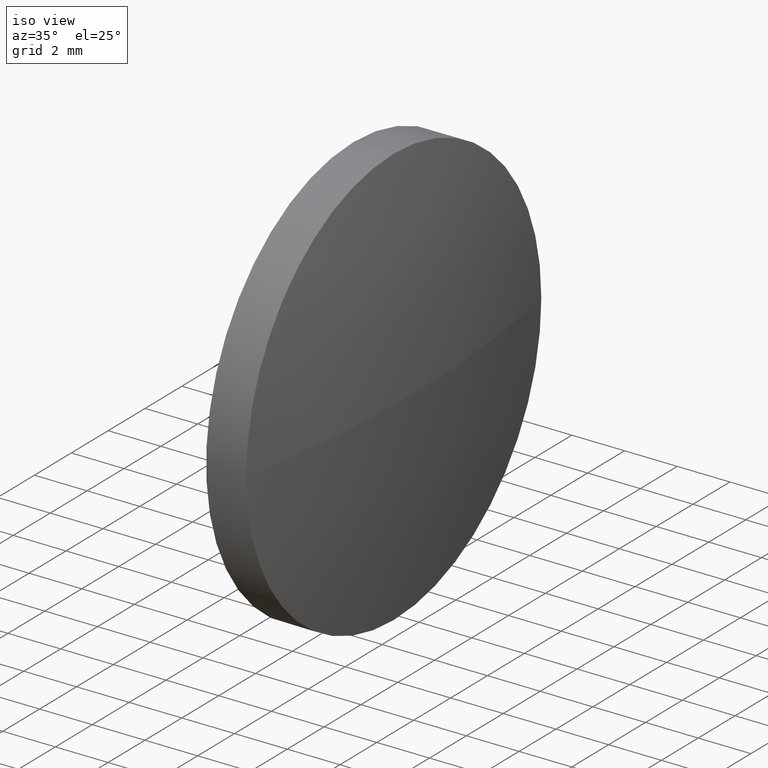
[diagram: clean part render]
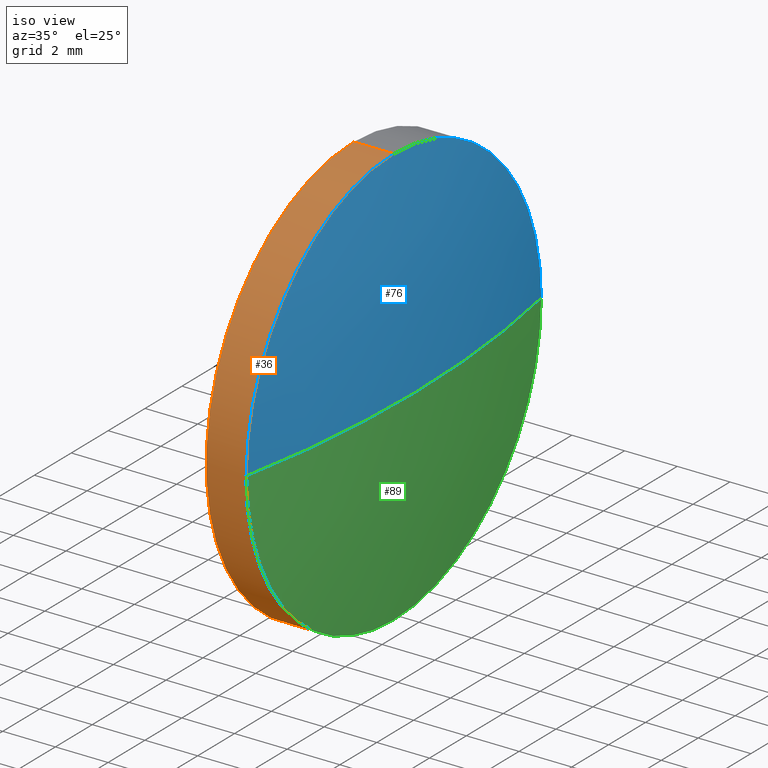
[diagram: same view with three faces highlighted in distinct colors, each labeled with its STEP entity id]
A machine part, iso view with three faces highlighted in distinct colors.
Their STEP definitions:

[orange] entity #36 — the highlighted cylindrical surface (partial cylindrical patch) has radius 8 mm, axis along (-1, -0, -0).
#8 = DIRECTION ( 'NONE',  ( -1.000000000000000000, -0.0000000000000000000, -0.0000000000000000000 ) ) ;
#12 = ORIENTED_EDGE ( 'NONE', *, *, #165, .F. ) ;
#13 = LINE ( 'NONE', #105, #18 ) ;
#17 = ORIENTED_EDGE ( 'NONE', *, *, #176, .F. ) ;
#18 = VECTOR ( 'NONE', #24, 1000.000000000000000 ) ;
#20 = FACE_OUTER_BOUND ( 'NONE', #185, .T. ) ;
#21 = DIRECTION ( 'NONE',  ( 0.0000000000000000000, 0.0000000000000000000, 1.000000000000000000 ) ) ;
#22 = VERTEX_POINT ( 'NONE', #34 ) ;
#24 = DIRECTION ( 'NONE',  ( -1.000000000000000000, -0.0000000000000000000, -0.0000000000000000000 ) ) ;
#28 = VERTEX_POINT ( 'NONE', #123 ) ;
#30 = AXIS2_PLACEMENT_3D ( 'NONE', #90, #103, #147 ) ;
#34 = CARTESIAN_POINT ( 'NONE',  ( 409.6874928420184600, 111.0797885215637400, -7.999999999999992900 ) ) ;
#36 = ADVANCED_FACE ( 'NONE', ( #20 ), #71, .T. ) ;
#52 = AXIS2_PLACEMENT_3D ( 'NONE', #102, #61, #101 ) ;
#53 = VERTEX_POINT ( 'NONE', #63 ) ;
#54 = CIRCLE ( 'NONE', #30, 7.999999999999992900 ) ;
#57 = EDGE_CURVE ( 'NONE', #22, #28, #83, .T. ) ;
#61 = DIRECTION ( 'NONE',  ( -1.000000000000000000, -0.0000000000000000000, -0.0000000000000000000 ) ) ;
#63 = CARTESIAN_POINT ( 'NONE',  ( 408.1674928420184800, 111.0797885215637400, -7.999999999999992900 ) ) ;
#71 = CYLINDRICAL_SURFACE ( 'NONE', #52, 7.999999999999992900 ) ;
#80 = VERTEX_POINT ( 'NONE', #128 ) ;
#82 = VECTOR ( 'NONE', #8, 1000.000000000000000 ) ;
#83 = CIRCLE ( 'NONE', #160, 7.999999999999992900 ) ;
#85 = CARTESIAN_POINT ( 'NONE',  ( 409.6874928420184600, 111.0797885215637400, 0.0000000000000000000 ) ) ;
#90 = CARTESIAN_POINT ( 'NONE',  ( 408.1674928420184800, 111.0797885215637400, 0.0000000000000000000 ) ) ;
#92 = EDGE_CURVE ( 'NONE', #28, #80, #186, .T. ) ;
#97 = ORIENTED_EDGE ( 'NONE', *, *, #153, .T. ) ;
#99 = DIRECTION ( 'NONE',  ( -1.000000000000000000, -0.0000000000000000000, -0.0000000000000000000 ) ) ;
#101 = DIRECTION ( 'NONE',  ( 0.0000000000000000000, 0.0000000000000000000, 1.000000000000000000 ) ) ;
#102 = CARTESIAN_POINT ( 'NONE',  ( 404.4422242216561500, 111.0797885215637400, 0.0000000000000000000 ) ) ;
#103 = DIRECTION ( 'NONE',  ( -1.000000000000000000, -0.0000000000000000000, -0.0000000000000000000 ) ) ;
#104 = AXIS2_PLACEMENT_3D ( 'NONE', #162, #168, #183 ) ;
#105 = CARTESIAN_POINT ( 'NONE',  ( 404.4422242216561500, 111.0797885215637400, -7.999999999999992900 ) ) ;
#113 = CARTESIAN_POINT ( 'NONE',  ( 404.4422242216561500, 111.0797885215637400, 7.999999999999992900 ) ) ;
#123 = CARTESIAN_POINT ( 'NONE',  ( 409.6874928420184600, 103.0797885215635400, -9.797174393178863100E-016 ) ) ;
#128 = CARTESIAN_POINT ( 'NONE',  ( 409.6874928420184600, 111.0797885215637400, 7.999999999999992900 ) ) ;
#132 = LINE ( 'NONE', #113, #82 ) ;
#142 = ORIENTED_EDGE ( 'NONE', *, *, #92, .T. ) ;
#147 = DIRECTION ( 'NONE',  ( 0.0000000000000000000, 0.0000000000000000000, 1.000000000000000000 ) ) ;
#153 = EDGE_CURVE ( 'NONE', #80, #173, #132, .T. ) ;
#160 = AXIS2_PLACEMENT_3D ( 'NONE', #85, #99, #21 ) ;
#161 = ORIENTED_EDGE ( 'NONE', *, *, #57, .T. ) ;
#162 = CARTESIAN_POINT ( 'NONE',  ( 409.6874928420184600, 111.0797885215637400, 0.0000000000000000000 ) ) ;
#165 = EDGE_CURVE ( 'NONE', #22, #53, #13, .T. ) ;
#168 = DIRECTION ( 'NONE',  ( -1.000000000000000000, -0.0000000000000000000, -0.0000000000000000000 ) ) ;
#171 = CARTESIAN_POINT ( 'NONE',  ( 408.1674928420184800, 111.0797885215637400, 7.999999999999992900 ) ) ;
#173 = VERTEX_POINT ( 'NONE', #171 ) ;
#176 = EDGE_CURVE ( 'NONE', #53, #173, #54, .T. ) ;
#183 = DIRECTION ( 'NONE',  ( 0.0000000000000000000, 0.0000000000000000000, 1.000000000000000000 ) ) ;
#185 = EDGE_LOOP ( 'NONE', ( #12, #161, #142, #97, #17 ) ) ;
#186 = CIRCLE ( 'NONE', #104, 7.999999999999992900 ) ;

[blue] entity #76 — the highlighted spherical surface has radius 41.4156 mm.
#2 = CIRCLE ( 'NONE', #136, 41.41564102564093700 ) ;
#4 = VERTEX_POINT ( 'NONE', #109 ) ;
#9 = AXIS2_PLACEMENT_3D ( 'NONE', #35, #10, #77 ) ;
#10 = DIRECTION ( 'NONE',  ( -0.0000000000000000000, 0.0000000000000000000, 1.000000000000000000 ) ) ;
#27 = EDGE_CURVE ( 'NONE', #80, #95, #124, .T. ) ;
#28 = VERTEX_POINT ( 'NONE', #123 ) ;
#32 = CIRCLE ( 'NONE', #9, 41.41564102564093700 ) ;
#35 = CARTESIAN_POINT ( 'NONE',  ( 369.0518518163775600, 111.0797885215635900, 0.0000000000000000000 ) ) ;
#41 = ORIENTED_EDGE ( 'NONE', *, *, #137, .F. ) ;
#42 = DIRECTION ( 'NONE',  ( -0.0000000000000000000, 0.0000000000000000000, -1.000000000000000000 ) ) ;
#45 = CARTESIAN_POINT ( 'NONE',  ( 409.6874928420184600, 119.0797885215637600, 0.0000000000000000000 ) ) ;
#49 = DIRECTION ( 'NONE',  ( 0.0000000000000000000, 1.224646799147353200E-016, -1.000000000000000000 ) ) ;
#76 = ADVANCED_FACE ( 'NONE', ( #172 ), #155, .T. ) ;
#77 = DIRECTION ( 'NONE',  ( 1.000000000000000000, 0.0000000000000000000, 0.0000000000000000000 ) ) ;
#79 = DIRECTION ( 'NONE',  ( 0.0000000000000000000, 1.000000000000000000, 0.0000000000000000000 ) ) ;
#80 = VERTEX_POINT ( 'NONE', #128 ) ;
#86 = ORIENTED_EDGE ( 'NONE', *, *, #27, .F. ) ;
#92 = EDGE_CURVE ( 'NONE', #28, #80, #186, .T. ) ;
#95 = VERTEX_POINT ( 'NONE', #45 ) ;
#104 = AXIS2_PLACEMENT_3D ( 'NONE', #162, #168, #183 ) ;
#108 = DIRECTION ( 'NONE',  ( -1.000000000000000000, -0.0000000000000000000, -0.0000000000000000000 ) ) ;
#109 = CARTESIAN_POINT ( 'NONE',  ( 410.4674928420184900, 111.0797885215635900, 0.0000000000000000000 ) ) ;
#110 = CARTESIAN_POINT ( 'NONE',  ( 409.6874928420184600, 111.0797885215637400, 0.0000000000000000000 ) ) ;
#111 = EDGE_CURVE ( 'NONE', #4, #95, #32, .T. ) ;
#122 = AXIS2_PLACEMENT_3D ( 'NONE', #110, #108, #178 ) ;
#123 = CARTESIAN_POINT ( 'NONE',  ( 409.6874928420184600, 103.0797885215635400, -9.797174393178863100E-016 ) ) ;
#124 = CIRCLE ( 'NONE', #122, 7.999999999999992900 ) ;
#125 = ORIENTED_EDGE ( 'NONE', *, *, #111, .T. ) ;
#128 = CARTESIAN_POINT ( 'NONE',  ( 409.6874928420184600, 111.0797885215637400, 7.999999999999992900 ) ) ;
#130 = CARTESIAN_POINT ( 'NONE',  ( 369.0518518163775600, 111.0797885215635900, 0.0000000000000000000 ) ) ;
#136 = AXIS2_PLACEMENT_3D ( 'NONE', #138, #49, #163 ) ;
#137 = EDGE_CURVE ( 'NONE', #4, #28, #2, .T. ) ;
#138 = CARTESIAN_POINT ( 'NONE',  ( 369.0518518163775600, 111.0797885215635900, 0.0000000000000000000 ) ) ;
#146 = ORIENTED_EDGE ( 'NONE', *, *, #92, .F. ) ;
#155 = SPHERICAL_SURFACE ( 'NONE', #156, 41.41564102564092300 ) ;
#156 = AXIS2_PLACEMENT_3D ( 'NONE', #130, #42, #79 ) ;
#162 = CARTESIAN_POINT ( 'NONE',  ( 409.6874928420184600, 111.0797885215637400, 0.0000000000000000000 ) ) ;
#163 = DIRECTION ( 'NONE',  ( 0.0000000000000000000, 1.000000000000000000, 1.224646799147352700E-016 ) ) ;
#168 = DIRECTION ( 'NONE',  ( -1.000000000000000000, -0.0000000000000000000, -0.0000000000000000000 ) ) ;
#172 = FACE_OUTER_BOUND ( 'NONE', #180, .T. ) ;
#178 = DIRECTION ( 'NONE',  ( 0.0000000000000000000, 0.0000000000000000000, 1.000000000000000000 ) ) ;
#180 = EDGE_LOOP ( 'NONE', ( #41, #125, #86, #146 ) ) ;
#183 = DIRECTION ( 'NONE',  ( 0.0000000000000000000, 0.0000000000000000000, 1.000000000000000000 ) ) ;
#186 = CIRCLE ( 'NONE', #104, 7.999999999999992900 ) ;

[green] entity #89 — the highlighted spherical surface has radius 41.4156 mm.
#2 = CIRCLE ( 'NONE', #136, 41.41564102564093700 ) ;
#4 = VERTEX_POINT ( 'NONE', #109 ) ;
#9 = AXIS2_PLACEMENT_3D ( 'NONE', #35, #10, #77 ) ;
#10 = DIRECTION ( 'NONE',  ( -0.0000000000000000000, 0.0000000000000000000, 1.000000000000000000 ) ) ;
#21 = DIRECTION ( 'NONE',  ( 0.0000000000000000000, 0.0000000000000000000, 1.000000000000000000 ) ) ;
#22 = VERTEX_POINT ( 'NONE', #34 ) ;
#25 = DIRECTION ( 'NONE',  ( -0.0000000000000000000, 0.0000000000000000000, -1.000000000000000000 ) ) ;
#28 = VERTEX_POINT ( 'NONE', #123 ) ;
#32 = CIRCLE ( 'NONE', #9, 41.41564102564093700 ) ;
#34 = CARTESIAN_POINT ( 'NONE',  ( 409.6874928420184600, 111.0797885215637400, -7.999999999999992900 ) ) ;
#35 = CARTESIAN_POINT ( 'NONE',  ( 369.0518518163775600, 111.0797885215635900, 0.0000000000000000000 ) ) ;
#40 = ORIENTED_EDGE ( 'NONE', *, *, #111, .F. ) ;
#44 = FACE_OUTER_BOUND ( 'NONE', #48, .T. ) ;
#45 = CARTESIAN_POINT ( 'NONE',  ( 409.6874928420184600, 119.0797885215637600, 0.0000000000000000000 ) ) ;
#46 = DIRECTION ( 'NONE',  ( 0.0000000000000000000, 1.000000000000000000, 0.0000000000000000000 ) ) ;
#48 = EDGE_LOOP ( 'NONE', ( #40, #67, #93, #59 ) ) ;
#49 = DIRECTION ( 'NONE',  ( 0.0000000000000000000, 1.224646799147353200E-016, -1.000000000000000000 ) ) ;
#57 = EDGE_CURVE ( 'NONE', #22, #28, #83, .T. ) ;
#59 = ORIENTED_EDGE ( 'NONE', *, *, #100, .F. ) ;
#67 = ORIENTED_EDGE ( 'NONE', *, *, #137, .T. ) ;
#77 = DIRECTION ( 'NONE',  ( 1.000000000000000000, 0.0000000000000000000, 0.0000000000000000000 ) ) ;
#78 = DIRECTION ( 'NONE',  ( -1.000000000000000000, -0.0000000000000000000, -0.0000000000000000000 ) ) ;
#83 = CIRCLE ( 'NONE', #160, 7.999999999999992900 ) ;
#85 = CARTESIAN_POINT ( 'NONE',  ( 409.6874928420184600, 111.0797885215637400, 0.0000000000000000000 ) ) ;
#89 = ADVANCED_FACE ( 'NONE', ( #44 ), #174, .T. ) ;
#91 = CARTESIAN_POINT ( 'NONE',  ( 409.6874928420184600, 111.0797885215637400, 0.0000000000000000000 ) ) ;
#93 = ORIENTED_EDGE ( 'NONE', *, *, #57, .F. ) ;
#95 = VERTEX_POINT ( 'NONE', #45 ) ;
#99 = DIRECTION ( 'NONE',  ( -1.000000000000000000, -0.0000000000000000000, -0.0000000000000000000 ) ) ;
#100 = EDGE_CURVE ( 'NONE', #95, #22, #143, .T. ) ;
#109 = CARTESIAN_POINT ( 'NONE',  ( 410.4674928420184900, 111.0797885215635900, 0.0000000000000000000 ) ) ;
#111 = EDGE_CURVE ( 'NONE', #4, #95, #32, .T. ) ;
#112 = DIRECTION ( 'NONE',  ( 0.0000000000000000000, 0.0000000000000000000, 1.000000000000000000 ) ) ;
#119 = AXIS2_PLACEMENT_3D ( 'NONE', #91, #78, #112 ) ;
#123 = CARTESIAN_POINT ( 'NONE',  ( 409.6874928420184600, 103.0797885215635400, -9.797174393178863100E-016 ) ) ;
#136 = AXIS2_PLACEMENT_3D ( 'NONE', #138, #49, #163 ) ;
#137 = EDGE_CURVE ( 'NONE', #4, #28, #2, .T. ) ;
#138 = CARTESIAN_POINT ( 'NONE',  ( 369.0518518163775600, 111.0797885215635900, 0.0000000000000000000 ) ) ;
#143 = CIRCLE ( 'NONE', #119, 7.999999999999992900 ) ;
#152 = AXIS2_PLACEMENT_3D ( 'NONE', #182, #25, #46 ) ;
#160 = AXIS2_PLACEMENT_3D ( 'NONE', #85, #99, #21 ) ;
#163 = DIRECTION ( 'NONE',  ( 0.0000000000000000000, 1.000000000000000000, 1.224646799147352700E-016 ) ) ;
#174 = SPHERICAL_SURFACE ( 'NONE', #152, 41.41564102564092300 ) ;
#182 = CARTESIAN_POINT ( 'NONE',  ( 369.0518518163775600, 111.0797885215635900, 0.0000000000000000000 ) ) ;